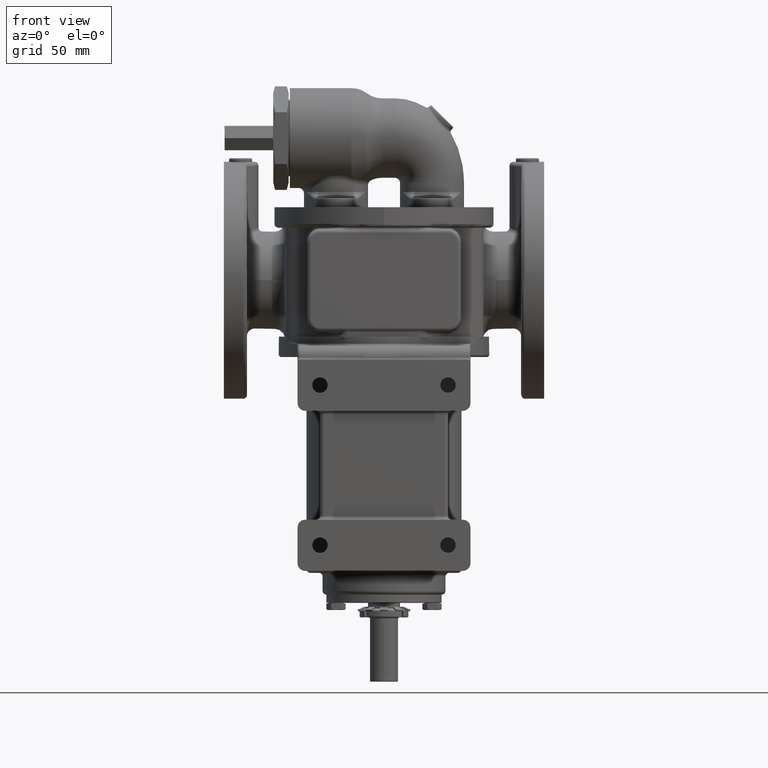
[diagram: clean part render]
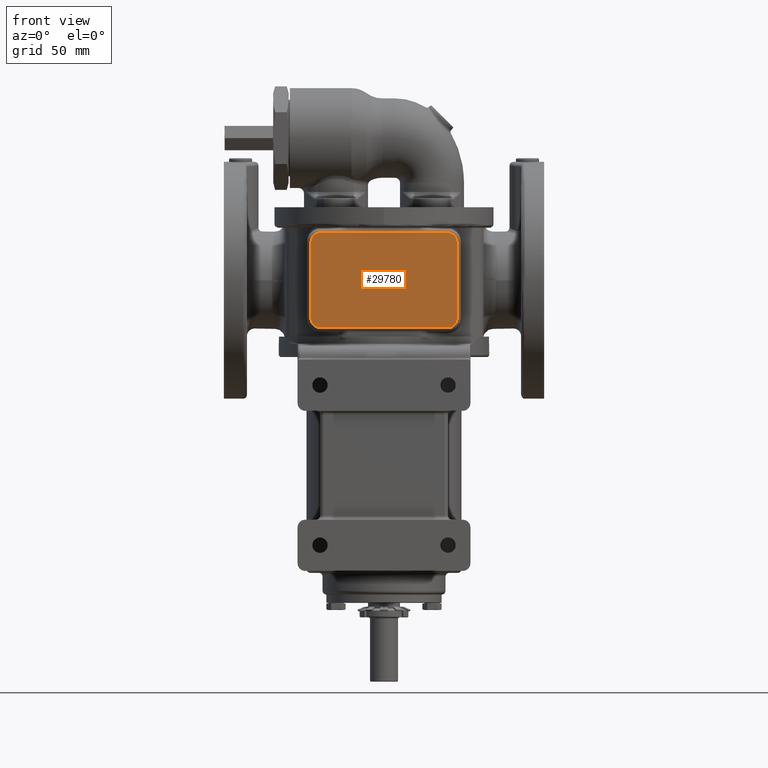
[diagram: same view with one face highlighted and labeled with its STEP entity id]
A machine part, front view. The second image highlights one B-rep face of the part: STEP entity #29780.
In plain terms, the highlighted planar face has unit normal (0, 1, 0).
Its self-contained STEP definition (entity closure, byte-faithful):
#1536=DIRECTION('',(-1.E0,0.E0,0.E0));
#1537=VECTOR('',#1536,1.E2);
#1538=CARTESIAN_POINT('',(5.E1,-7.9E1,8.7E1));
#1539=LINE('',#1538,#1537);
#3694=DIRECTION('',(1.E0,0.E0,0.E0));
#3695=VECTOR('',#3694,1.E2);
#3696=CARTESIAN_POINT('',(-5.E1,-7.9E1,1.3E1));
#3697=LINE('',#3696,#3695);
#3760=CARTESIAN_POINT('',(-5.E1,-7.9E1,2.E1));
#3761=DIRECTION('',(0.E0,-1.E0,0.E0));
#3762=DIRECTION('',(-1.E0,0.E0,0.E0));
#3763=AXIS2_PLACEMENT_3D('',#3760,#3761,#3762);
#3765=DIRECTION('',(0.E0,0.E0,-1.E0));
#3766=VECTOR('',#3765,6.E1);
#3767=CARTESIAN_POINT('',(-5.7E1,-7.9E1,8.E1));
#3768=LINE('',#3767,#3766);
#3769=CARTESIAN_POINT('',(-5.E1,-7.9E1,8.E1));
#3770=DIRECTION('',(0.E0,-1.E0,0.E0));
#3771=DIRECTION('',(0.E0,0.E0,1.E0));
#3772=AXIS2_PLACEMENT_3D('',#3769,#3770,#3771);
#3774=CARTESIAN_POINT('',(5.E1,-7.9E1,8.E1));
#3775=DIRECTION('',(0.E0,-1.E0,0.E0));
#3776=DIRECTION('',(1.E0,0.E0,0.E0));
#3777=AXIS2_PLACEMENT_3D('',#3774,#3775,#3776);
#3779=DIRECTION('',(0.E0,0.E0,1.E0));
#3780=VECTOR('',#3779,6.E1);
#3781=CARTESIAN_POINT('',(5.7E1,-7.9E1,2.E1));
#3782=LINE('',#3781,#3780);
#3783=CARTESIAN_POINT('',(5.E1,-7.9E1,2.E1));
#3784=DIRECTION('',(0.E0,-1.E0,0.E0));
#3785=DIRECTION('',(0.E0,0.E0,-1.E0));
#3786=AXIS2_PLACEMENT_3D('',#3783,#3784,#3785);
#13307=CARTESIAN_POINT('',(5.E1,-7.9E1,1.3E1));
#13308=CARTESIAN_POINT('',(5.7E1,-7.9E1,2.E1));
#13309=VERTEX_POINT('',#13307);
#13310=VERTEX_POINT('',#13308);
#13315=CARTESIAN_POINT('',(5.7E1,-7.9E1,8.E1));
#13316=VERTEX_POINT('',#13315);
#13319=CARTESIAN_POINT('',(5.E1,-7.9E1,8.7E1));
#13320=VERTEX_POINT('',#13319);
#13323=CARTESIAN_POINT('',(-5.7E1,-7.9E1,2.E1));
#13324=CARTESIAN_POINT('',(-5.E1,-7.9E1,1.3E1));
#13325=VERTEX_POINT('',#13323);
#13326=VERTEX_POINT('',#13324);
#13331=CARTESIAN_POINT('',(-5.7E1,-7.9E1,8.E1));
#13332=VERTEX_POINT('',#13331);
#13335=CARTESIAN_POINT('',(-5.E1,-7.9E1,8.7E1));
#13336=VERTEX_POINT('',#13335);
#29760=CARTESIAN_POINT('',(0.E0,-7.9E1,5.E1));
#29761=DIRECTION('',(0.E0,1.E0,0.E0));
#29762=DIRECTION('',(-1.E0,0.E0,0.E0));
#29763=AXIS2_PLACEMENT_3D('',#29760,#29761,#29762);
#29764=PLANE('',#29763);
#29765=ORIENTED_EDGE('',*,*,#29706,.F.);
#29766=ORIENTED_EDGE('',*,*,#29751,.F.);
#29768=ORIENTED_EDGE('',*,*,#29767,.F.);
#29770=ORIENTED_EDGE('',*,*,#29769,.F.);
#29771=ORIENTED_EDGE('',*,*,#20036,.F.);
#29773=ORIENTED_EDGE('',*,*,#29772,.F.);
#29775=ORIENTED_EDGE('',*,*,#29774,.F.);
#29777=ORIENTED_EDGE('',*,*,#29776,.F.);
#29778=EDGE_LOOP('',(#29765,#29766,#29768,#29770,#29771,#29773,#29775,#29777));
#29779=FACE_OUTER_BOUND('',#29778,.F.);
#29780=ADVANCED_FACE('',(#29779),#29764,.F.);
#3764=CIRCLE('',#3763,7.E0);
#3773=CIRCLE('',#3772,7.E0);
#3778=CIRCLE('',#3777,7.E0);
#3787=CIRCLE('',#3786,7.E0);
#20036=EDGE_CURVE('',#13320,#13336,#1539,.T.);
#29706=EDGE_CURVE('',#13326,#13309,#3697,.T.);
#29751=EDGE_CURVE('',#13325,#13326,#3764,.T.);
#29767=EDGE_CURVE('',#13332,#13325,#3768,.T.);
#29769=EDGE_CURVE('',#13336,#13332,#3773,.T.);
#29772=EDGE_CURVE('',#13316,#13320,#3778,.T.);
#29774=EDGE_CURVE('',#13310,#13316,#3782,.T.);
#29776=EDGE_CURVE('',#13309,#13310,#3787,.T.);